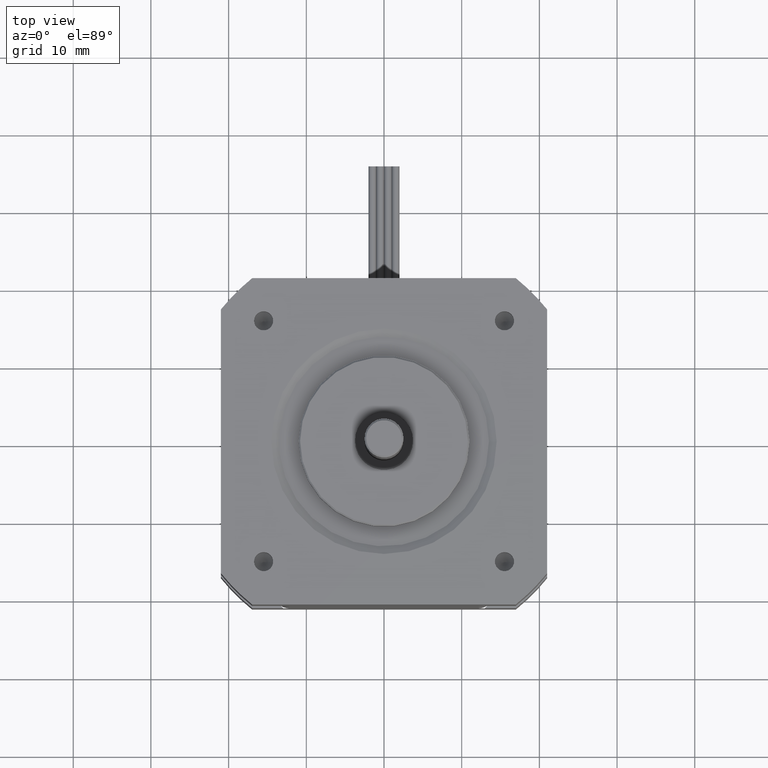
[diagram: clean part render]
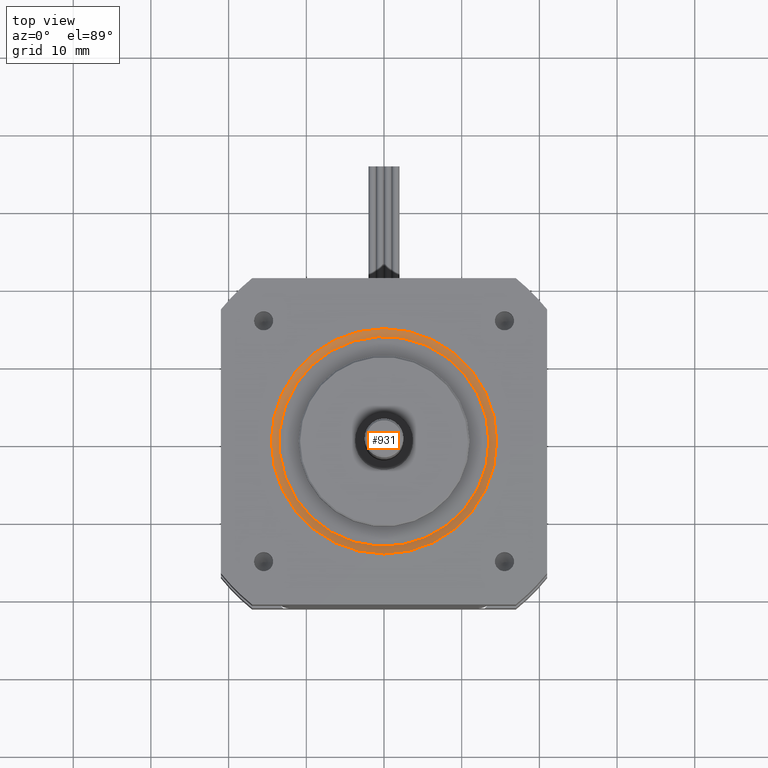
[diagram: same view with one face highlighted and labeled with its STEP entity id]
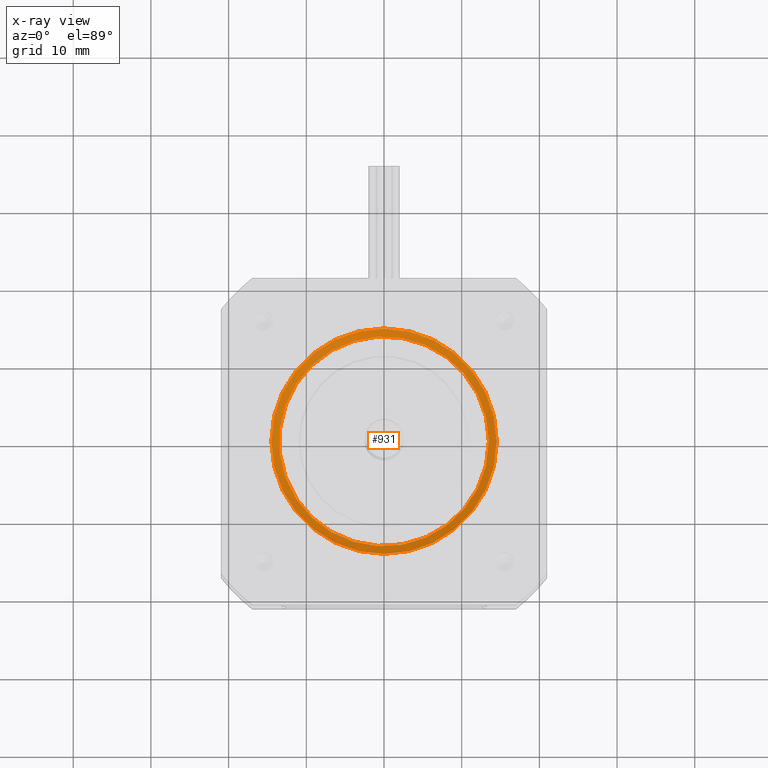
[diagram: x-ray of the same camera — body ghosted, the highlighted face saturated]
A machine part, top view. The second image highlights one B-rep face of the part: STEP entity #931.
The next image is the same camera in x-ray: the body ghosted, the highlighted face saturated — about 0% of this face is hidden behind the body in this view.
In plain terms, the highlighted conical surface has half-angle 63.435 deg.
Its self-contained STEP definition (entity closure, byte-faithful):
#904=CARTESIAN_POINT('',(-1.403331E-048,-2.628266E-032,24.000000000000014));
#905=DIRECTION('',(-1.845360E-113,-2.564162E-033,1.0));
#906=DIRECTION('',(-1.0,0.0,0.0));
#907=AXIS2_PLACEMENT_3D('',#904,#905,#906);
#908=CONICAL_SURFACE('',#907,14.000000000000005,63.434948822922003);
#909=CARTESIAN_POINT('',(13.500000000000000,1.653273E-015,23.750000000000007));
#910=VERTEX_POINT('',#909);
#911=CARTESIAN_POINT('',(-1.403331E-048,-2.564162E-032,23.750000000000007));
#912=DIRECTION('',(0.0,0.0,1.0));
#913=DIRECTION('',(-1.0,0.0,0.0));
#914=AXIS2_PLACEMENT_3D('',#911,#912,#913);
#915=CIRCLE('',#914,13.500000000000000);
#916=EDGE_CURVE('',#910,#910,#915,.T.);
#917=ORIENTED_EDGE('',*,*,#916,.F.);
#918=EDGE_LOOP('',(#917));
#919=FACE_OUTER_BOUND('',#918,.T.);
#920=CARTESIAN_POINT('',(14.500000000000007,1.775679E-015,24.250000000000007));
#921=VERTEX_POINT('',#920);
#922=CARTESIAN_POINT('',(-1.403331E-048,-2.692370E-032,24.250000000000007));
#923=DIRECTION('',(0.0,0.0,1.0));
#924=DIRECTION('',(-1.0,0.0,0.0));
#925=AXIS2_PLACEMENT_3D('',#922,#923,#924);
#926=CIRCLE('',#925,14.500000000000007);
#927=EDGE_CURVE('',#921,#921,#926,.T.);
#928=ORIENTED_EDGE('',*,*,#927,.T.);
#929=EDGE_LOOP('',(#928));
#930=FACE_BOUND('',#929,.T.);
#931=ADVANCED_FACE('',(#919,#930),#908,.F.);